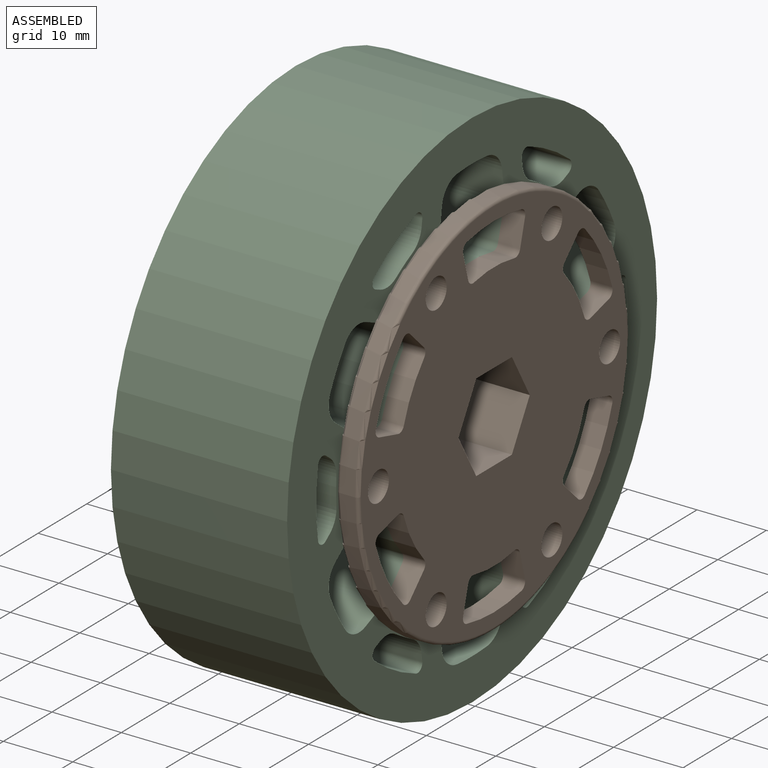
[diagram: assembled view]
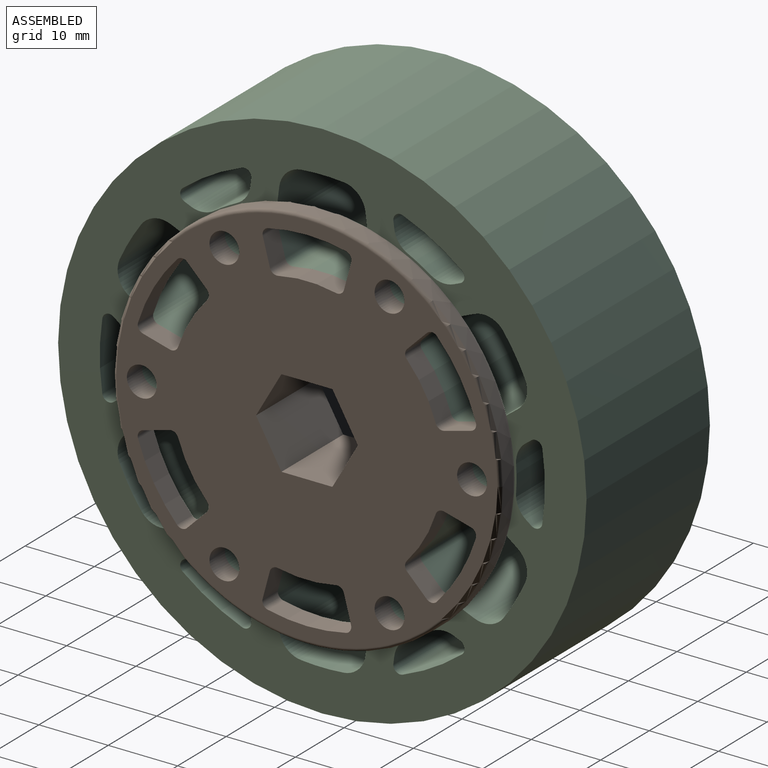
[diagram: assembled view, second angle]
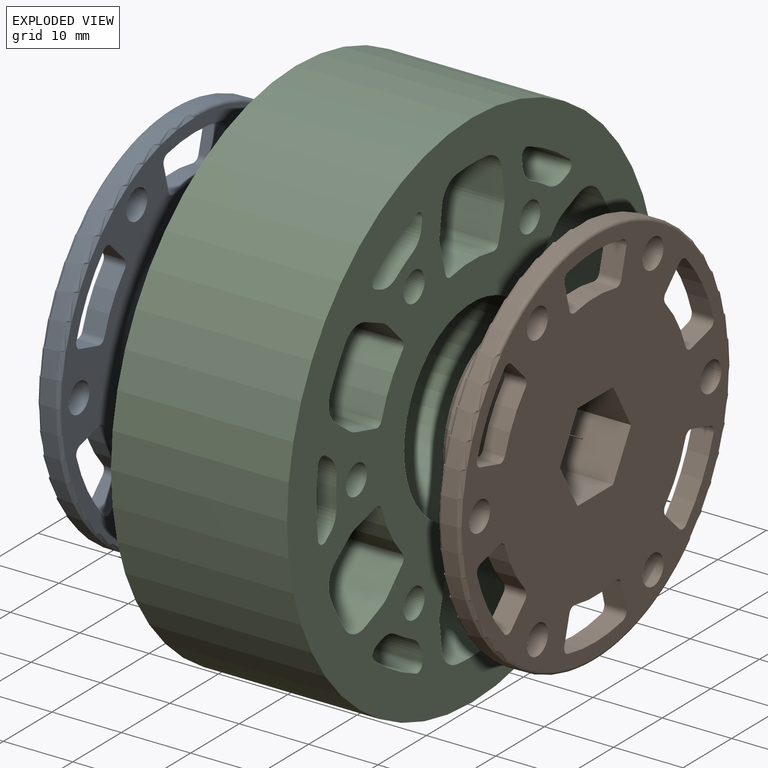
[diagram: exploded view]
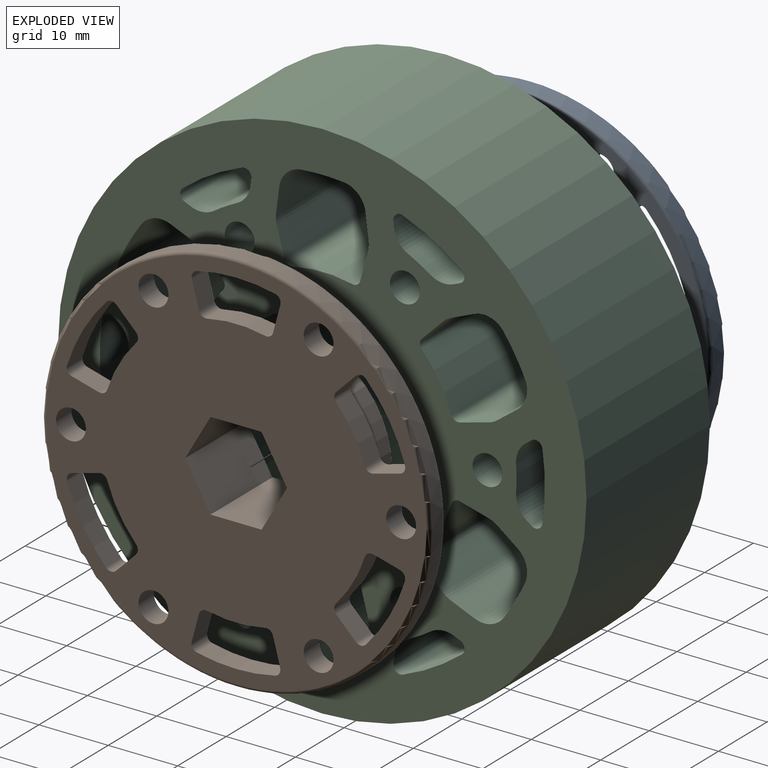
[diagram: exploded view, second angle]
ASSEMBLY  parts=3 mates=2
PART A: 69 faces, bbox 12.7x60.5x60.5 mm
  f0: torus R=27.44mm, axis (-1,0,0), area 137mm2, adj f2,f18
  f1: torus R=27.44mm, axis (1,0,0), area 137mm2, adj f2,f61
  f2: cylinder r=27.94mm len=55.88mm, axis (-1,0,0), area 381.8mm2, adj f0,f1
  f3: cone r=14.29mm half-angle=45deg, axis (1,0,0), area 122.6mm2, adj f5,f62
  f4: torus R=15.56mm, axis (-1,0,0), area 185mm2, adj f5,f18
  f5: cylinder r=14.29mm len=28.59mm, axis (1,0,0), area 651.6mm2, adj f3,f4
  f6: cylinder r=2.15mm len=4.3mm, axis (1,0,0), area 42.9mm2, adj f18,f61
  f7: cylinder r=2.15mm len=4.3mm, axis (1,0,0), area 42.9mm2, adj f18,f61
  f8: cylinder r=2.15mm len=4.3mm, axis (1,0,0), area 42.9mm2, adj f18,f61
  f9: cylinder r=2.15mm len=4.3mm, axis (1,0,0), area 42.9mm2, adj f18,f61
  f10: cylinder r=1mm len=3.18mm, axis (1,0,0), area 5.1mm2, adj f18,f58,f59,f61
  f11: cylinder r=1mm len=3.18mm, axis (1,0,0), area 5.1mm2, adj f18,f47,f53,f61
  f12: cylinder r=1mm len=3.18mm, axis (1,0,0), area 5.1mm2, adj f18,f40,f46,f61
  f13: cylinder r=2.15mm len=4.3mm, axis (1,0,0), area 42.9mm2, adj f18,f61
  f14: cylinder r=1mm len=3.18mm, axis (1,0,0), area 5.1mm2, adj f18,f37,f38,f61
  f15: cylinder r=1mm len=3.18mm, axis (1,0,0), area 4.8mm2, adj f18,f28,f29,f61
  f16: cylinder r=1mm len=3.18mm, axis (1,0,0), area 4.8mm2, adj f18,f19,f20,f61
  f17: cylinder r=2.15mm len=4.3mm, axis (1,0,0), area 42.9mm2, adj f18,f61
  f18: plane 54.88x54.88mm, normal (-1,0,0), area 1095.5mm2, adj f0,f4,f6,f7,f8,f9,f10,f11
  f19: plane 3.18x2.83mm, normal (0,-0.71,0.71), area 12.7mm2, adj f16,f18,f25,f61
  f20: cylinder r=19.5mm len=7.2mm, axis (1,0,0), area 26.6mm2, adj f16,f18,f21,f61
  f21: cylinder r=1mm len=3.18mm, axis (1,0,0), area 4.8mm2, adj f18,f20,f22,f61
  f22: plane 3.87x3.18mm, normal (0,0.26,-0.97), area 12.7mm2, adj f18,f21,f23,f61
  f23: cylinder r=1mm len=3.18mm, axis (1,0,0), area 5.1mm2, adj f18,f22,f24,f61
  f24: cylinder r=25.5mm len=9.75mm, axis (1,0,0), area 36mm2, adj f18,f23,f25,f61
  f25: cylinder r=1mm len=3.18mm, axis (1,0,0), area 5.1mm2, adj f18,f19,f24,f61
  f26: plane 3.87x3.18mm, normal (0,0.26,0.97), area 12.7mm2, adj f18,f27,f32,f61
  f27: cylinder r=1mm len=3.18mm, axis (1,0,0), area 4.8mm2, adj f18,f26,f28,f61
  f28: cylinder r=19.5mm len=7.2mm, axis (1,0,0), area 26.6mm2, adj f15,f18,f27,f61
  f29: plane 3.18x2.83mm, normal (0,-0.71,-0.71), area 12.7mm2, adj f15,f18,f30,f61
  f30: cylinder r=1mm len=3.18mm, axis (1,0,0), area 5.1mm2, adj f18,f29,f31,f61
  f31: cylinder r=25.5mm len=9.74mm, axis (1,0,0), area 36mm2, adj f18,f30,f32,f61
  f32: cylinder r=1mm len=3.18mm, axis (1,0,0), area 5.1mm2, adj f18,f26,f31,f61
  f33: plane 3.87x3.18mm, normal (0,0.97,0.26), area 12.7mm2, adj f18,f34,f39,f61
  f34: cylinder r=1mm len=3.18mm, axis (1,0,0), area 4.8mm2, adj f18,f33,f35,f61
  f35: cylinder r=19.5mm len=8.32mm, axis (1,0,0), area 26.6mm2, adj f18,f34,f36,f61
  f36: cylinder r=1mm len=3.18mm, axis (1,0,0), area 4.8mm2, adj f18,f35,f37,f61
  f37: plane 3.87x3.18mm, normal (0,-0.97,0.26), area 12.7mm2, adj f14,f18,f36,f61
  f38: cylinder r=25.5mm len=11.26mm, axis (1,0,0), area 36mm2, adj f14,f18,f39,f61
  f39: cylinder r=1mm len=3.18mm, axis (1,0,0), area 5.1mm2, adj f18,f33,f38,f61
  f40: plane 3.87x3.18mm, normal (0,-0.97,-0.26), area 12.7mm2, adj f12,f18,f41,f61
  f41: cylinder r=1mm len=3.18mm, axis (1,0,0), area 4.8mm2, adj f18,f40,f42,f61
  f42: cylinder r=19.5mm len=8.32mm, axis (1,0,0), area 26.6mm2, adj f18,f41,f43,f61
  f43: cylinder r=1mm len=3.18mm, axis (1,0,0), area 4.8mm2, adj f18,f42,f44,f61
  f44: plane 3.87x3.18mm, normal (0,0.97,-0.26), area 12.7mm2, adj f18,f43,f45,f61
  f45: cylinder r=1mm len=3.18mm, axis (1,0,0), area 5.1mm2, adj f18,f44,f46,f61
  f46: cylinder r=25.5mm len=11.26mm, axis (1,0,0), area 36mm2, adj f12,f18,f45,f61
  f47: plane 3.87x3.18mm, normal (0,-0.26,-0.97), area 12.7mm2, adj f11,f18,f48,f61
  f48: cylinder r=1mm len=3.18mm, axis (1,0,0), area 4.8mm2, adj f18,f47,f49,f61
  f49: cylinder r=19.5mm len=7.2mm, axis (1,0,0), area 26.6mm2, adj f18,f48,f50,f61
  f50: cylinder r=1mm len=3.18mm, axis (1,0,0), area 4.8mm2, adj f18,f49,f51,f61
  f51: plane 3.18x2.83mm, normal (0,0.71,0.71), area 12.7mm2, adj f18,f50,f52,f61
  f52: cylinder r=1mm len=3.18mm, axis (1,0,0), area 5.1mm2, adj f18,f51,f53,f61
  f53: cylinder r=25.5mm len=9.74mm, axis (1,0,0), area 36mm2, adj f11,f18,f52,f61
  f54: plane 3.18x2.83mm, normal (0,0.71,-0.71), area 12.7mm2, adj f18,f55,f60,f61
  f55: cylinder r=1mm len=3.18mm, axis (1,0,0), area 4.8mm2, adj f18,f54,f56,f61
  f56: cylinder r=19.5mm len=7.2mm, axis (1,0,0), area 26.6mm2, adj f18,f55,f57,f61
  f57: cylinder r=1mm len=3.18mm, axis (1,0,0), area 4.8mm2, adj f18,f56,f58,f61
  f58: plane 3.87x3.18mm, normal (0,-0.26,0.97), area 12.7mm2, adj f10,f18,f57,f61
  f59: cylinder r=25.5mm len=9.75mm, axis (1,0,0), area 36mm2, adj f10,f18,f60,f61
  f60: cylinder r=1mm len=3.18mm, axis (1,0,0), area 5.1mm2, adj f18,f54,f59,f61
  f61: plane 54.88x54.88mm, normal (1,0,0), area 1716.4mm2, adj f1,f6,f7,f8,f9,f10,f11,f12
  f62: plane 26.59x26.59mm, normal (-1,0,0), area 415.1mm2, adj f3,f63,f64,f65,f66,f67,f68
  f63: plane 12.7x7.35mm, normal (0,0,1), area 93.3mm2, adj f61,f62,f64,f68
  f64: plane 12.7x6.36mm, normal (0,0.87,0.5), area 93.3mm2, adj f61,f62,f63,f65
  f65: plane 12.7x6.36mm, normal (0,0.87,-0.5), area 93.3mm2, adj f61,f62,f64,f66
  f66: plane 12.7x7.35mm, normal (0,0,-1), area 93.3mm2, adj f61,f62,f65,f67
  f67: plane 12.7x6.36mm, normal (0,-0.87,-0.5), area 93.3mm2, adj f61,f62,f66,f68
  f68: plane 12.7x6.36mm, normal (0,-0.87,0.5), area 93.3mm2, adj f61,f62,f63,f67
PART B: same geometry as A
PART C: 130 faces, bbox 76.2x25.4x76.2 mm
  f0: cylinder r=1mm len=25.4mm, axis (0,1,0), area 38.9mm2, adj f22,f23,f60,f65
  f1: cylinder r=1mm len=25.4mm, axis (0,1,0), area 52.5mm2, adj f22,f23,f57,f58
  f2: cylinder r=1mm len=25.4mm, axis (0,1,0), area 52.5mm2, adj f22,f23,f87,f88
  f3: cylinder r=1mm len=25.4mm, axis (0,1,0), area 52.5mm2, adj f22,f23,f47,f49
  f4: cylinder r=1mm len=25.4mm, axis (0,1,0), area 52.5mm2, adj f22,f23,f34,f44
  f5: cylinder r=3.5mm len=25.4mm, axis (0,1,0), area 88mm2, adj f22,f23,f30,f45
  f6: cylinder r=3.5mm len=25.4mm, axis (0,1,0), area 34.5mm2, adj f22,f23,f54,f55
  f7: cylinder r=3.5mm len=25.4mm, axis (0,1,0), area 119.9mm2, adj f22,f23,f83,f84
  f8: cylinder r=3.5mm len=25.4mm, axis (0,1,0), area 119.9mm2, adj f22,f23,f74,f75
  f9: cylinder r=3.5mm len=25.4mm, axis (0,1,0), area 34.5mm2, adj f22,f23,f67,f68
  f10: cylinder r=32.1mm len=25.4mm, axis (0,1,0), area 250.8mm2, adj f22,f23,f118,f121
  f11: cylinder r=28mm len=25.4mm, axis (0,1,0), area 97.3mm2, adj f22,f23,f96,f100
  f12: cylinder r=1mm len=25.4mm, axis (0,1,0), area 38.9mm2, adj f22,f23,f24,f25
  f13: cylinder r=3.5mm len=25.4mm, axis (0,1,0), area 88mm2, adj f22,f23,f30,f31
  f14: cylinder r=2.15mm len=25.4mm, axis (0,1,0), area 343.5mm2, adj f22,f23
  f15: cylinder r=2.15mm len=25.4mm, axis (0,1,0), area 343.5mm2, adj f22,f23
  f16: cylinder r=2.15mm len=25.4mm, axis (0,1,0), area 343.5mm2, adj f22,f23
  f17: cylinder r=2.15mm len=25.4mm, axis (0,1,0), area 343.5mm2, adj f22,f23
  f18: cylinder r=2.15mm len=25.4mm, axis (0,1,0), area 343.5mm2, adj f22,f23
  f19: cylinder r=2.15mm len=25.4mm, axis (0,1,0), area 343.5mm2, adj f22,f23
  f20: cylinder r=14mm len=28mm, axis (0,-1,0), area 2234.3mm2, adj f22,f23
  f21: cylinder r=38.1mm len=76.2mm, axis (0,-1,0), area 6080.5mm2, adj f22,f23
  f22: plane 76.2x76.2mm, normal (0,1,0), area 2696.2mm2, adj f0,f1,f2,f3,f4,f5,f6,f7
  f23: plane 76.2x76.2mm, normal (0,-1,0), area 2696.2mm2, adj f0,f1,f2,f3,f4,f5,f6,f7
  f24: cylinder r=19.5mm len=25.4mm, axis (0,1,0), area 218.9mm2, adj f12,f22,f23,f43
  f25: plane 25.4x3.06mm, normal (0.71,0,-0.71), area 110mm2, adj f12,f22,f23,f40
  f26: plane 25.4x3.38mm, normal (0.92,0,-0.39), area 93.1mm2, adj f22,f23,f39,f40
  f27: cylinder r=32.1mm len=25.4mm, axis (0,1,0), area 156.4mm2, adj f22,f23,f38,f39
  f28: plane 25.4x2.92mm, normal (-0.8,0,0.6), area 93.1mm2, adj f22,f23,f37,f38
  f29: plane 25.4x4.18mm, normal (-0.97,0,0.26), area 110mm2, adj f22,f23,f37,f43
  f30: cylinder r=28mm len=25.4mm, axis (0,1,0), area 97.3mm2, adj f5,f13,f22,f23
  f31: plane 25.4x0.82mm, normal (0.8,0,-0.6), area 26.1mm2, adj f13,f22,f23,f42
  f32: cylinder r=32.1mm len=25.4mm, axis (0,1,0), area 250.8mm2, adj f22,f23,f42,f127
  f33: cylinder r=28mm len=25.4mm, axis (0,1,0), area 97.3mm2, adj f22,f23,f36,f90
  f34: cylinder r=32.1mm len=25.4mm, axis (0,1,0), area 250.8mm2, adj f4,f22,f23,f41
  f35: plane 25.4x0.95mm, normal (-0.92,0,0.39), area 26.1mm2, adj f22,f23,f36,f41
  f36: cylinder r=3.5mm len=25.4mm, axis (0,1,0), area 88mm2, adj f22,f23,f33,f35
  f37: cylinder r=3.5mm len=25.4mm, axis (0,1,0), area 34.5mm2, adj f22,f23,f28,f29
  f38: cylinder r=3.5mm len=25.4mm, axis (0,1,0), area 119.9mm2, adj f22,f23,f27,f28
  f39: cylinder r=3.5mm len=25.4mm, axis (0,1,0), area 119.9mm2, adj f22,f23,f26,f27
  f40: cylinder r=3.5mm len=25.4mm, axis (0,1,0), area 34.5mm2, adj f22,f23,f25,f26
  f41: cylinder r=1mm len=25.4mm, axis (0,1,0), area 52.5mm2, adj f22,f23,f34,f35
  f42: cylinder r=1mm len=25.4mm, axis (0,1,0), area 52.5mm2, adj f22,f23,f31,f32
  f43: cylinder r=1mm len=25.4mm, axis (0,1,0), area 38.9mm2, adj f22,f23,f24,f29
  f44: plane 25.4x1.02mm, normal (-0.13,0,-0.99), area 26.1mm2, adj f4,f22,f23,f90
  f45: plane 25.4x0.82mm, normal (-0.8,0,-0.6), area 26.1mm2, adj f5,f22,f23,f127
  f46: cylinder r=28mm len=25.4mm, axis (0,1,0), area 97.3mm2, adj f22,f23,f91,f95
  f47: cylinder r=32.1mm len=25.4mm, axis (0,1,0), area 250.8mm2, adj f3,f22,f23,f115
  f48: plane 25.4x1.02mm, normal (-0.13,0,0.99), area 26.1mm2, adj f22,f23,f91,f115
  f49: plane 25.4x0.95mm, normal (-0.92,0,-0.39), area 26.1mm2, adj f3,f22,f23,f95
  f50: cylinder r=19.5mm len=25.4mm, axis (0,1,0), area 218.9mm2, adj f22,f23,f125,f126
  f51: plane 25.4x4.18mm, normal (0.26,0,0.97), area 110mm2, adj f22,f23,f109,f125
  f52: plane 25.4x3.64mm, normal (-0.13,0,0.99), area 93.1mm2, adj f22,f23,f108,f109
  f53: cylinder r=32.1mm len=25.4mm, axis (0,1,0), area 156.4mm2, adj f22,f23,f107,f108
  f54: plane 25.4x3.64mm, normal (-0.13,0,-0.99), area 93.1mm2, adj f6,f22,f23,f107
  f55: plane 25.4x4.18mm, normal (0.26,0,-0.97), area 110mm2, adj f6,f22,f23,f126
  f56: cylinder r=28mm len=25.4mm, axis (0,1,0), area 97.3mm2, adj f22,f23,f106,f110
  f57: cylinder r=32.1mm len=25.4mm, axis (0,1,0), area 250.8mm2, adj f1,f22,f23,f128
  f58: plane 25.4x1.02mm, normal (0.13,0,-0.99), area 26.1mm2, adj f1,f22,f23,f106
  f59: plane 25.4x0.95mm, normal (0.92,0,0.39), area 26.1mm2, adj f22,f23,f110,f128
  f60: cylinder r=19.5mm len=25.4mm, axis (0,1,0), area 218.9mm2, adj f0,f22,f23,f129
  f61: plane 25.4x4.18mm, normal (0.97,0,0.26), area 110mm2, adj f22,f23,f114,f129
  f62: plane 25.4x2.92mm, normal (0.8,0,0.6), area 93.1mm2, adj f22,f23,f113,f114
  f63: cylinder r=32.1mm len=25.4mm, axis (0,1,0), area 156.4mm2, adj f22,f23,f112,f113
  f64: plane 25.4x3.38mm, normal (-0.92,0,-0.39), area 93.1mm2, adj f22,f23,f111,f112
  f65: plane 25.4x3.06mm, normal (-0.71,0,-0.71), area 110mm2, adj f0,f22,f23,f111
  f66: cylinder r=19.5mm len=25.4mm, axis (0,1,0), area 218.9mm2, adj f22,f23,f116,f117
  f67: plane 25.4x4.18mm, normal (-0.26,0,-0.97), area 110mm2, adj f9,f22,f23,f116
  f68: plane 25.4x3.64mm, normal (0.13,0,-0.99), area 93.1mm2, adj f9,f22,f23,f94
  f69: cylinder r=32.1mm len=25.4mm, axis (0,1,0), area 156.4mm2, adj f22,f23,f93,f94
  f70: plane 25.4x3.64mm, normal (0.13,0,0.99), area 93.1mm2, adj f22,f23,f92,f93
  f71: plane 25.4x4.18mm, normal (-0.26,0,0.97), area 110mm2, adj f22,f23,f92,f117
  f72: cylinder r=19.5mm len=25.4mm, axis (0,1,0), area 218.9mm2, adj f22,f23,f119,f120
  f73: plane 25.4x4.18mm, normal (-0.97,0,-0.26), area 110mm2, adj f22,f23,f99,f119
  f74: plane 25.4x2.92mm, normal (-0.8,0,-0.6), area 93.1mm2, adj f8,f22,f23,f99
  f75: cylinder r=32.1mm len=25.4mm, axis (0,1,0), area 156.4mm2, adj f8,f22,f23,f98
  f76: plane 25.4x3.38mm, normal (0.92,0,0.39), area 93.1mm2, adj f22,f23,f97,f98
  f77: plane 25.4x3.06mm, normal (0.71,0,0.71), area 110mm2, adj f22,f23,f97,f120
  f78: plane 25.4x0.82mm, normal (0.8,0,0.6), area 26.1mm2, adj f22,f23,f96,f118
  f79: plane 25.4x0.82mm, normal (-0.8,0,0.6), area 26.1mm2, adj f22,f23,f100,f121
  f80: cylinder r=19.5mm len=25.4mm, axis (0,1,0), area 218.9mm2, adj f22,f23,f122,f123
  f81: plane 25.4x3.06mm, normal (-0.71,0,0.71), area 110mm2, adj f22,f23,f104,f122
  f82: plane 25.4x3.38mm, normal (-0.92,0,0.39), area 93.1mm2, adj f22,f23,f103,f104
  f83: cylinder r=32.1mm len=25.4mm, axis (0,1,0), area 156.4mm2, adj f7,f22,f23,f103
  f84: plane 25.4x2.92mm, normal (0.8,0,-0.6), area 93.1mm2, adj f7,f22,f23,f102
  f85: plane 25.4x4.18mm, normal (0.97,0,-0.26), area 110mm2, adj f22,f23,f102,f123
  f86: cylinder r=28mm len=25.4mm, axis (0,1,0), area 97.3mm2, adj f22,f23,f101,f105
  f87: cylinder r=32.1mm len=25.4mm, axis (0,1,0), area 250.8mm2, adj f2,f22,f23,f124
  f88: plane 25.4x0.95mm, normal (0.92,0,-0.39), area 26.1mm2, adj f2,f22,f23,f101
  f89: plane 25.4x1.02mm, normal (0.13,0,0.99), area 26.1mm2, adj f22,f23,f105,f124
  f90: cylinder r=3.5mm len=25.4mm, axis (0,1,0), area 88mm2, adj f22,f23,f33,f44
  f91: cylinder r=3.5mm len=25.4mm, axis (0,1,0), area 88mm2, adj f22,f23,f46,f48
  f92: cylinder r=3.5mm len=25.4mm, axis (0,1,0), area 34.5mm2, adj f22,f23,f70,f71
  f93: cylinder r=3.5mm len=25.4mm, axis (0,1,0), area 119.9mm2, adj f22,f23,f69,f70
  f94: cylinder r=3.5mm len=25.4mm, axis (0,1,0), area 119.9mm2, adj f22,f23,f68,f69
  f95: cylinder r=3.5mm len=25.4mm, axis (0,1,0), area 88mm2, adj f22,f23,f46,f49
  f96: cylinder r=3.5mm len=25.4mm, axis (0,1,0), area 88mm2, adj f11,f22,f23,f78
  f97: cylinder r=3.5mm len=25.4mm, axis (0,1,0), area 34.5mm2, adj f22,f23,f76,f77
  f98: cylinder r=3.5mm len=25.4mm, axis (0,1,0), area 119.9mm2, adj f22,f23,f75,f76
  f99: cylinder r=3.5mm len=25.4mm, axis (0,1,0), area 34.5mm2, adj f22,f23,f73,f74
  f100: cylinder r=3.5mm len=25.4mm, axis (0,1,0), area 88mm2, adj f11,f22,f23,f79
  f101: cylinder r=3.5mm len=25.4mm, axis (0,1,0), area 88mm2, adj f22,f23,f86,f88
  f102: cylinder r=3.5mm len=25.4mm, axis (0,1,0), area 34.5mm2, adj f22,f23,f84,f85
  f103: cylinder r=3.5mm len=25.4mm, axis (0,1,0), area 119.9mm2, adj f22,f23,f82,f83
  f104: cylinder r=3.5mm len=25.4mm, axis (0,1,0), area 34.5mm2, adj f22,f23,f81,f82
  f105: cylinder r=3.5mm len=25.4mm, axis (0,1,0), area 88mm2, adj f22,f23,f86,f89
  f106: cylinder r=3.5mm len=25.4mm, axis (0,1,0), area 88mm2, adj f22,f23,f56,f58
  f107: cylinder r=3.5mm len=25.4mm, axis (0,1,0), area 119.9mm2, adj f22,f23,f53,f54
  f108: cylinder r=3.5mm len=25.4mm, axis (0,1,0), area 119.9mm2, adj f22,f23,f52,f53
  f109: cylinder r=3.5mm len=25.4mm, axis (0,1,0), area 34.5mm2, adj f22,f23,f51,f52
  f110: cylinder r=3.5mm len=25.4mm, axis (0,1,0), area 88mm2, adj f22,f23,f56,f59
  f111: cylinder r=3.5mm len=25.4mm, axis (0,1,0), area 34.5mm2, adj f22,f23,f64,f65
  f112: cylinder r=3.5mm len=25.4mm, axis (0,1,0), area 119.9mm2, adj f22,f23,f63,f64
  f113: cylinder r=3.5mm len=25.4mm, axis (0,1,0), area 119.9mm2, adj f22,f23,f62,f63
  f114: cylinder r=3.5mm len=25.4mm, axis (0,1,0), area 34.5mm2, adj f22,f23,f61,f62
  f115: cylinder r=1mm len=25.4mm, axis (0,1,0), area 52.5mm2, adj f22,f23,f47,f48
  f116: cylinder r=1mm len=25.4mm, axis (0,1,0), area 38.9mm2, adj f22,f23,f66,f67
  f117: cylinder r=1mm len=25.4mm, axis (0,1,0), area 38.9mm2, adj f22,f23,f66,f71
  f118: cylinder r=1mm len=25.4mm, axis (0,1,0), area 52.5mm2, adj f10,f22,f23,f78
  f119: cylinder r=1mm len=25.4mm, axis (0,1,0), area 38.9mm2, adj f22,f23,f72,f73
  f120: cylinder r=1mm len=25.4mm, axis (0,1,0), area 38.9mm2, adj f22,f23,f72,f77
  f121: cylinder r=1mm len=25.4mm, axis (0,1,0), area 52.5mm2, adj f10,f22,f23,f79
  f122: cylinder r=1mm len=25.4mm, axis (0,1,0), area 38.9mm2, adj f22,f23,f80,f81
  f123: cylinder r=1mm len=25.4mm, axis (0,1,0), area 38.9mm2, adj f22,f23,f80,f85
  f124: cylinder r=1mm len=25.4mm, axis (0,1,0), area 52.5mm2, adj f22,f23,f87,f89
  f125: cylinder r=1mm len=25.4mm, axis (0,1,0), area 38.9mm2, adj f22,f23,f50,f51
  f126: cylinder r=1mm len=25.4mm, axis (0,1,0), area 38.9mm2, adj f22,f23,f50,f55
  f127: cylinder r=1mm len=25.4mm, axis (0,1,0), area 52.5mm2, adj f22,f23,f32,f45
  f128: cylinder r=1mm len=25.4mm, axis (0,1,0), area 52.5mm2, adj f22,f23,f57,f59
  f129: cylinder r=1mm len=25.4mm, axis (0,1,0), area 38.9mm2, adj f22,f23,f60,f61
PLACE A rot(axis=(0,-1,0),180deg) t=(-44.69,-12.3,9.26)mm
PLACE B t=(-38.34,-12.3,9.26)mm
PLACE C rot(axis=(-0.58,0.58,0.58),120deg) t=(-41.51,-12.3,9.26)mm
MATE fastened C.f10 <-> B.f0  axis (1,0,0) through (-28.81,-12.3,9.26)mm
MATE fastened A.f0 <-> C.f10  axis (1,0,0) through (-54.21,-12.3,9.26)mm
